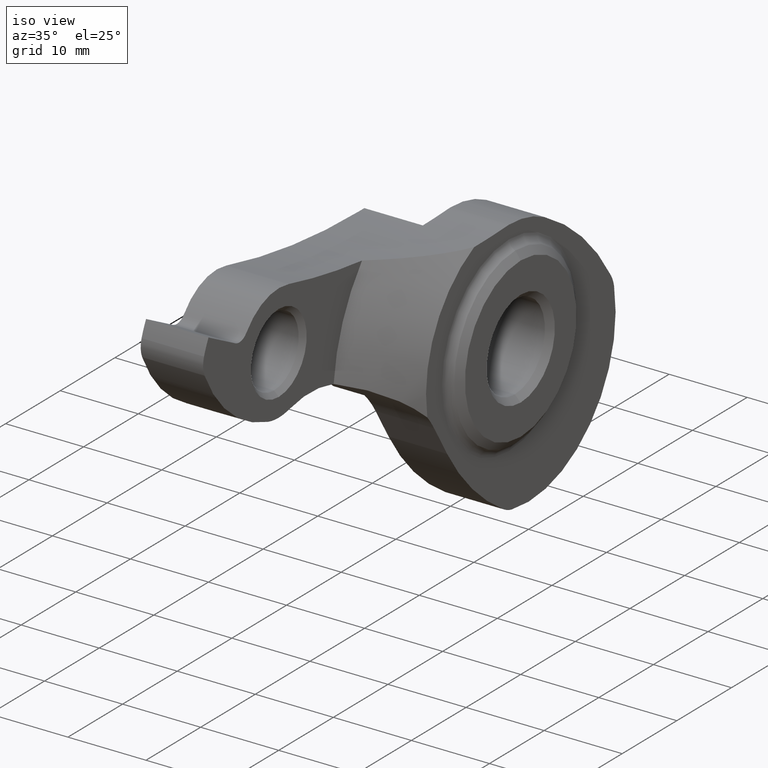
[diagram: clean part render]
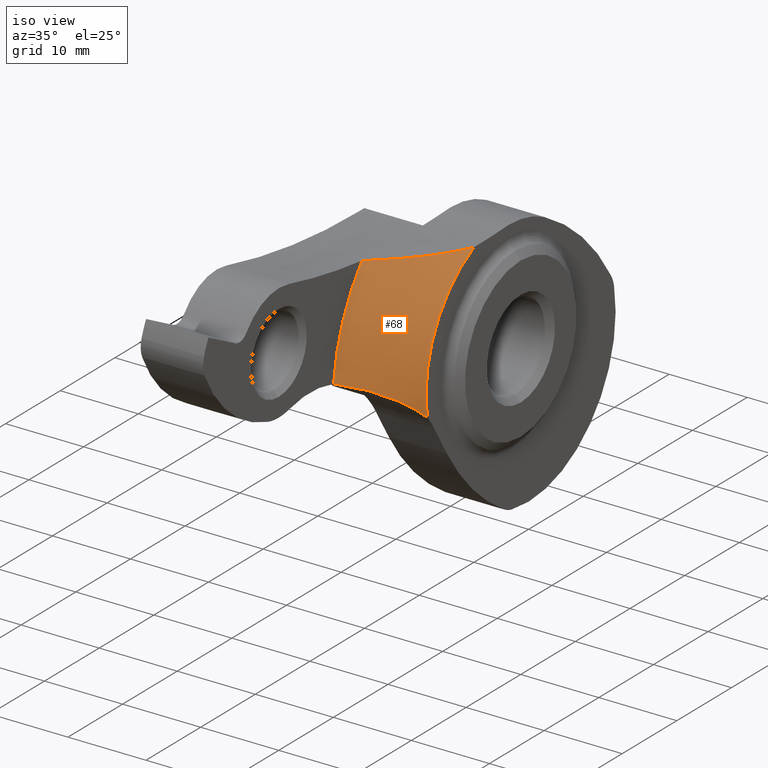
[diagram: same view with one face highlighted and labeled with its STEP entity id]
A machine part, iso view. The second image highlights one B-rep face of the part: STEP entity #68.
In plain terms, the highlighted conical surface has half-angle 45 deg.
Its self-contained STEP definition (entity closure, byte-faithful):
#27 = CIRCLE ( 'NONE', #868, 15.18999999999999950 ) ;
#30 = CARTESIAN_POINT ( 'NONE',  ( 0.4999999999999981681, -16.90208000679909617, 14.37761424728591564 ) ) ;
#32 = CARTESIAN_POINT ( 'NONE',  ( 7.500000000000000000, -6.379320389034159433, 13.78551309796095481 ) ) ;
#61 = EDGE_CURVE ( 'NONE', #1838, #864, #1793, .T. ) ;
#68 = ADVANCED_FACE ( 'NONE', ( #1901 ), #382, .T. ) ;
#122 = DIRECTION ( 'NONE',  ( 0.0000000000000000000, 0.0000000000000000000, 1.000000000000000000 ) ) ;
#154 = DIRECTION ( 'NONE',  ( 0.0000000000000000000, 0.0000000000000000000, 1.000000000000000000 ) ) ;
#165 = CARTESIAN_POINT ( 'NONE',  ( 7.081473535153784304, -7.368431683371166940, 13.78896303512962263 ) ) ;
#288 = CARTESIAN_POINT ( 'NONE',  ( 7.500000000000000000, -14.95473091495274254, -2.663104065063292669 ) ) ;
#315 = CARTESIAN_POINT ( 'NONE',  ( 6.298564700535537852, -16.34979715003604639, -1.197704129909980209 ) ) ;
#324 = CARTESIAN_POINT ( 'NONE',  ( 3.069476808726425698, -19.59274454077827698, 1.071151108616525738 ) ) ;
#382 = CONICAL_SURFACE ( 'NONE', #1913, 15.18999999999999950, 0.7853981633974431720 ) ;
#467 = CARTESIAN_POINT ( 'NONE',  ( 6.592569785825927120, -8.309922148474180759, 13.80671280323406691 ) ) ;
#472 = CARTESIAN_POINT ( 'NONE',  ( 7.057915210571716003, -15.50221048651274991, -2.035238140193220691 ) ) ;
#609 = CARTESIAN_POINT ( 'NONE',  ( 4.958070269503722649, -11.02020417791528217, 13.90570156137078683 ) ) ;
#615 = CARTESIAN_POINT ( 'NONE',  ( 7.500000000000000000, -14.95473091495274254, -2.663104065063292669 ) ) ;
#623 = CIRCLE ( 'NONE', #1299, 22.18999999999993022 ) ;
#714 = DIRECTION ( 'NONE',  ( -1.000000000000000000, -0.0000000000000000000, -0.0000000000000000000 ) ) ;
#754 = CARTESIAN_POINT ( 'NONE',  ( 3.130957710406474526, -13.59878353045965760, 14.06819194200154044 ) ) ;
#760 = CARTESIAN_POINT ( 'NONE',  ( 1.156621807414342840, -21.45203222252498065, 1.874799582257289599 ) ) ;
#763 = ORIENTED_EDGE ( 'NONE', *, *, #789, .T. ) ;
#789 = EDGE_CURVE ( 'NONE', #864, #1729, #27, .T. ) ;
#835 = ORIENTED_EDGE ( 'NONE', *, *, #1892, .T. ) ;
#839 = ORIENTED_EDGE ( 'NONE', *, *, #1444, .F. ) ;
#864 = VERTEX_POINT ( 'NONE', #288 ) ;
#868 = AXIS2_PLACEMENT_3D ( 'NONE', #1621, #714, #1770 ) ;
#889 = ORIENTED_EDGE ( 'NONE', *, *, #61, .T. ) ;
#900 = CARTESIAN_POINT ( 'NONE',  ( 4.892618832732321010, -17.80116771089152294, -0.01465299412253164707 ) ) ;
#903 = CARTESIAN_POINT ( 'NONE',  ( 1.176575255707567935, -16.08943392507654124, 14.28874026501827110 ) ) ;
#926 = VERTEX_POINT ( 'NONE', #1651 ) ;
#998 = DIRECTION ( 'NONE',  ( -1.000000000000000000, -0.0000000000000000000, -0.0000000000000000000 ) ) ;
#1044 = B_SPLINE_CURVE_WITH_KNOTS ( 'NONE', 3,
 ( #1046, #165, #467, #1501, #609, #1665, #754, #1810, #903, #30 ),
 .UNSPECIFIED., .F., .F.,
 ( 4, 2, 2, 2, 4 ),
 ( 5.038543160167370944E-07, 0.003163562636377010955, 0.006326621418438005753, 0.009489680200498999685, 0.01265273898255999362 ),
 .UNSPECIFIED. ) ;
#1046 = CARTESIAN_POINT ( 'NONE',  ( 7.500000000000000000, -6.379320389034159433, 13.78551309796095481 ) ) ;
#1058 = CARTESIAN_POINT ( 'NONE',  ( 0.4999999999999995559, -22.09320875708426968, 2.070320462124583649 ) ) ;
#1205 = CARTESIAN_POINT ( 'NONE',  ( 7.500000000000000000, 0.0000000000000000000, 0.0000000000000000000 ) ) ;
#1213 = CARTESIAN_POINT ( 'NONE',  ( 5.475311242301994952, -17.21720479043299434, -0.4452096619672541999 ) ) ;
#1221 = CARTESIAN_POINT ( 'NONE',  ( 3.689981488284018951, -18.98900496241047620, 0.7439113869334995632 ) ) ;
#1299 = AXIS2_PLACEMENT_3D ( 'NONE', #1898, #998, #122 ) ;
#1355 = DIRECTION ( 'NONE',  ( -1.000000000000000000, -0.0000000000000000000, -0.0000000000000000000 ) ) ;
#1360 = CARTESIAN_POINT ( 'NONE',  ( 6.562820174903066572, -16.06352953001491457, -1.465468369129839132 ) ) ;
#1418 = EDGE_LOOP ( 'NONE', ( #835, #839, #889, #763 ) ) ;
#1444 = EDGE_CURVE ( 'NONE', #1838, #926, #623, .T. ) ;
#1501 = CARTESIAN_POINT ( 'NONE',  ( 5.531175501204407929, -10.13601524884442817, 13.86503941935057327 ) ) ;
#1505 = CARTESIAN_POINT ( 'NONE',  ( 7.289700056183533228, -15.22624109338196696, -2.337955106797871885 ) ) ;
#1621 = CARTESIAN_POINT ( 'NONE',  ( 7.500000000000000000, 0.0000000000000000000, 0.0000000000000000000 ) ) ;
#1646 = CARTESIAN_POINT ( 'NONE',  ( 0.4999999999999995559, -22.09320875708426968, 2.070320462124583649 ) ) ;
#1651 = CARTESIAN_POINT ( 'NONE',  ( 0.4999999999999981681, -16.90208000679909617, 14.37761424728591564 ) ) ;
#1665 = CARTESIAN_POINT ( 'NONE',  ( 3.758103604114319207, -12.75168387341714293, 14.00726110296282556 ) ) ;
#1729 = VERTEX_POINT ( 'NONE', #32 ) ;
#1770 = DIRECTION ( 'NONE',  ( 0.0000000000000000000, 0.0000000000000000000, 1.000000000000000000 ) ) ;
#1793 = B_SPLINE_CURVE_WITH_KNOTS ( 'NONE', 3,
 ( #1058, #760, #1812, #324, #1221, #900, #1213, #315, #1360, #472, #1505, #615 ),
 .UNSPECIFIED., .F., .F.,
 ( 4, 2, 2, 2, 2, 4 ),
 ( 2.818689054388469432E-07, 0.002776505456939424958, 0.005552729044973410584, 0.008328952633007395343, 0.009717064427024392492, 0.01110517622104138964 ),
 .UNSPECIFIED. ) ;
#1810 = CARTESIAN_POINT ( 'NONE',  ( 1.840262739549234583, -15.26770499610387866, 14.20892433370531549 ) ) ;
#1812 = CARTESIAN_POINT ( 'NONE',  ( 1.802885719280348686, -20.82428387335698616, 1.636709252148787597 ) ) ;
#1838 = VERTEX_POINT ( 'NONE', #1646 ) ;
#1892 = EDGE_CURVE ( 'NONE', #1729, #926, #1044, .T. ) ;
#1898 = CARTESIAN_POINT ( 'NONE',  ( 0.4999999999999978351, 0.0000000000000000000, 0.0000000000000000000 ) ) ;
#1901 = FACE_OUTER_BOUND ( 'NONE', #1418, .T. ) ;
#1913 = AXIS2_PLACEMENT_3D ( 'NONE', #1205, #1355, #154 ) ;